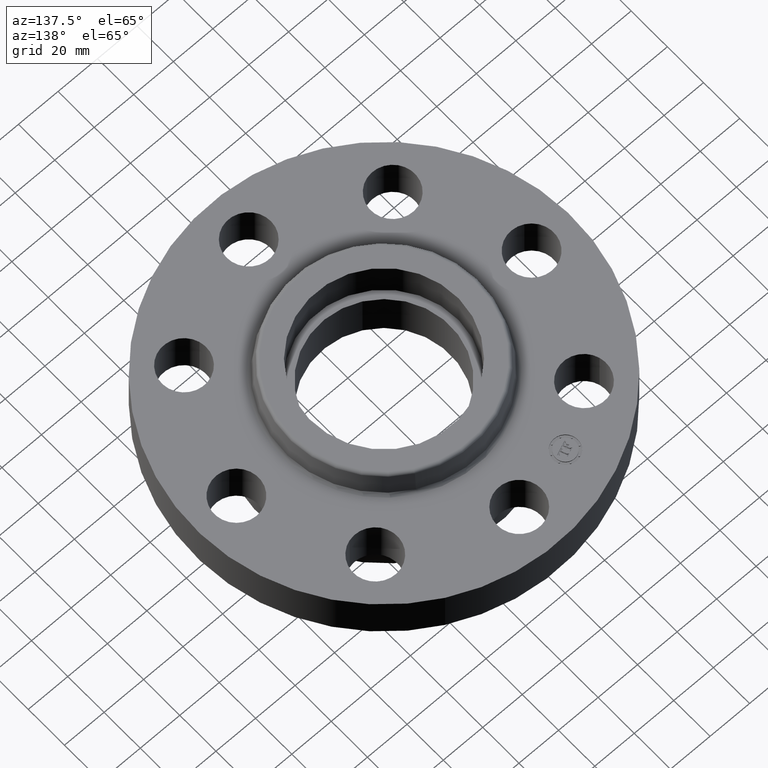
[diagram: clean part render]
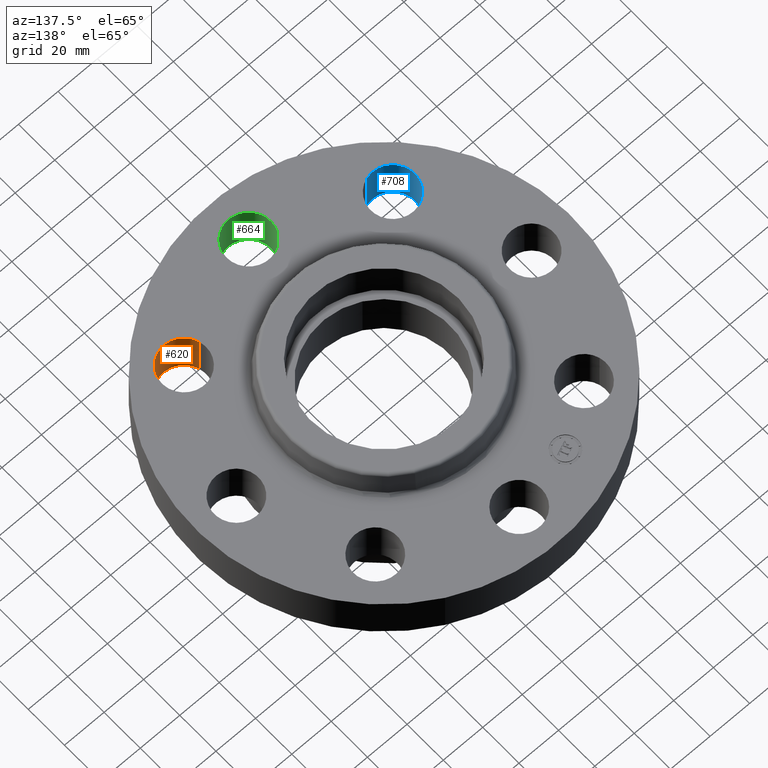
[diagram: same view with three faces highlighted in distinct colors, each labeled with its STEP entity id]
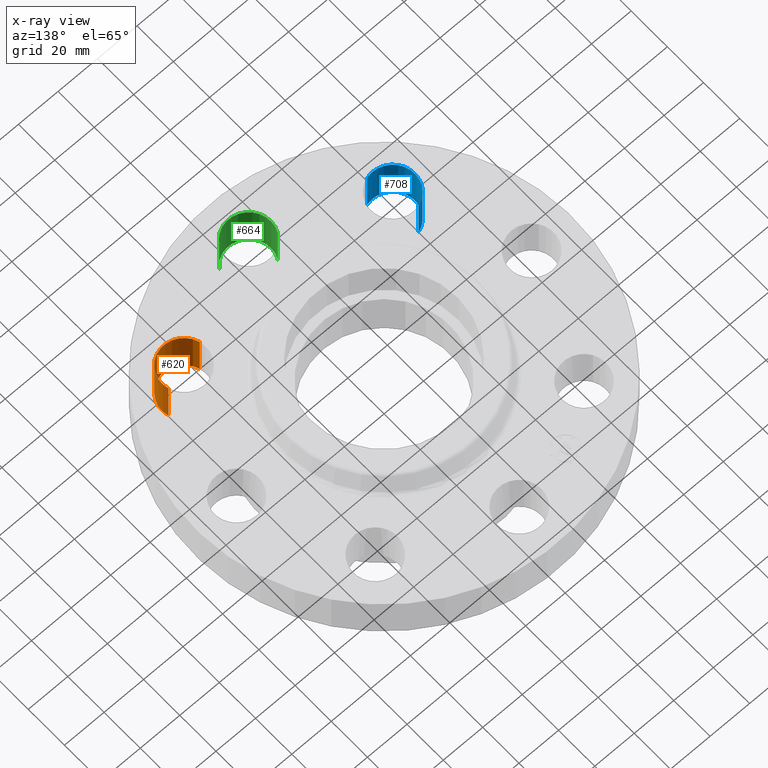
[diagram: x-ray of the same camera — body ghosted, the three highlighted faces saturated]
A machine part, auxiliary view with three faces highlighted in distinct colors.
The next image is the same camera in x-ray (body ghosted, the three faces saturated) — at least one of them is partly hidden behind the body in this view.
Their STEP definitions:

[orange] entity #620 — the highlighted cylindrical surface (edge-blend (fillet) strip) has radius 11.176 mm, axis along (-0, 0, -1).
#500=AXIS2_PLACEMENT_3D('Circle Axis2P3D',#498,#499,$) ;
#593=AXIS2_PLACEMENT_3D('Cylinder Axis2P3D',#590,#591,#592) ;
#611=AXIS2_PLACEMENT_3D('Circle Axis2P3D',#609,#610,$) ;
#495=CARTESIAN_POINT('Vertex',(1.6566920995,-2.2027713304,0.)) ;
#498=CARTESIAN_POINT('Axis2P3D Location',(2.0788939367,-2.0788939367,0.)) ;
#502=CARTESIAN_POINT('Vertex',(2.50109577389,-1.95501654299,0.)) ;
#590=CARTESIAN_POINT('Axis2P3D Location',(2.0788939367,-2.0788939367,0.93606299213)) ;
#595=CARTESIAN_POINT('Line Origine',(2.50109577389,-1.95501654299,0.470000000002)) ;
#599=CARTESIAN_POINT('Vertex',(2.50109577389,-1.95501654299,0.940000000004)) ;
#602=CARTESIAN_POINT('Line Origine',(1.6566920995,-2.2027713304,0.470000000002)) ;
#606=CARTESIAN_POINT('Vertex',(1.6566920995,-2.2027713304,0.940000000004)) ;
#609=CARTESIAN_POINT('Axis2P3D Location',(2.0788939367,-2.0788939367,0.940000000004)) ;
#499=DIRECTION('Axis2P3D Direction',(0.,0.,-0.0393700787402)) ;
#591=DIRECTION('Axis2P3D Direction',(-0.,0.,-0.0393700787402)) ;
#592=DIRECTION('Axis2P3D XDirection',(-0.0377775444876,-0.0110842335096,0.)) ;
#596=DIRECTION('Vector Direction',(0.,0.,-0.0393700787402)) ;
#603=DIRECTION('Vector Direction',(0.,0.,-0.0393700787402)) ;
#610=DIRECTION('Axis2P3D Direction',(-0.,0.,-0.0393700787402)) ;
#597=VECTOR('Line Direction',#596,0.0393700787402) ;
#604=VECTOR('Line Direction',#603,0.0393700787402) ;
#615=ORIENTED_EDGE('',*,*,#601,.F.) ;
#616=ORIENTED_EDGE('',*,*,#504,.T.) ;
#617=ORIENTED_EDGE('',*,*,#608,.T.) ;
#618=ORIENTED_EDGE('',*,*,#613,.F.) ;
#620=ADVANCED_FACE('PartBody',(#619),#594,.F.) ;
#501=CIRCLE('generated circle',#500,0.440000000002) ;
#612=CIRCLE('generated circle',#611,0.440000000002) ;
#594=CYLINDRICAL_SURFACE('generated cylinder',#593,0.440000000002) ;
#504=EDGE_CURVE('',#503,#496,#501,.T.) ;
#601=EDGE_CURVE('',#503,#600,#598,.F.) ;
#608=EDGE_CURVE('',#496,#607,#605,.F.) ;
#613=EDGE_CURVE('',#600,#607,#612,.T.) ;
#614=EDGE_LOOP('',(#615,#616,#617,#618)) ;
#619=FACE_OUTER_BOUND('',#614,.T.) ;
#598=LINE('Line',#595,#597) ;
#605=LINE('Line',#602,#604) ;
#496=VERTEX_POINT('',#495) ;
#503=VERTEX_POINT('',#502) ;
#600=VERTEX_POINT('',#599) ;
#607=VERTEX_POINT('',#606) ;

[blue] entity #708 — the highlighted cylindrical surface (edge-blend (fillet) strip) has radius 11.176 mm, axis along (0, 0, -1).
#462=AXIS2_PLACEMENT_3D('Circle Axis2P3D',#460,#461,$) ;
#681=AXIS2_PLACEMENT_3D('Cylinder Axis2P3D',#678,#679,#680) ;
#699=AXIS2_PLACEMENT_3D('Circle Axis2P3D',#697,#698,$) ;
#457=CARTESIAN_POINT('Vertex',(-2.2027713304,-1.6566920995,0.)) ;
#460=CARTESIAN_POINT('Axis2P3D Location',(-2.0788939367,-2.0788939367,0.)) ;
#464=CARTESIAN_POINT('Vertex',(-1.95501654299,-2.50109577389,0.)) ;
#678=CARTESIAN_POINT('Axis2P3D Location',(-2.0788939367,-2.0788939367,0.93606299213)) ;
#683=CARTESIAN_POINT('Line Origine',(-1.95501654299,-2.50109577389,0.470000000002)) ;
#687=CARTESIAN_POINT('Vertex',(-1.95501654299,-2.50109577389,0.940000000004)) ;
#690=CARTESIAN_POINT('Line Origine',(-2.2027713304,-1.6566920995,0.470000000002)) ;
#694=CARTESIAN_POINT('Vertex',(-2.2027713304,-1.6566920995,0.940000000004)) ;
#697=CARTESIAN_POINT('Axis2P3D Location',(-2.0788939367,-2.0788939367,0.940000000004)) ;
#461=DIRECTION('Axis2P3D Direction',(0.,0.,-0.0393700787402)) ;
#679=DIRECTION('Axis2P3D Direction',(0.,0.,-0.0393700787402)) ;
#680=DIRECTION('Axis2P3D XDirection',(-0.0110842335096,0.0377775444876,0.)) ;
#684=DIRECTION('Vector Direction',(0.,0.,-0.0393700787402)) ;
#691=DIRECTION('Vector Direction',(0.,0.,-0.0393700787402)) ;
#698=DIRECTION('Axis2P3D Direction',(0.,0.,-0.0393700787402)) ;
#685=VECTOR('Line Direction',#684,0.0393700787402) ;
#692=VECTOR('Line Direction',#691,0.0393700787402) ;
#703=ORIENTED_EDGE('',*,*,#689,.F.) ;
#704=ORIENTED_EDGE('',*,*,#466,.T.) ;
#705=ORIENTED_EDGE('',*,*,#696,.T.) ;
#706=ORIENTED_EDGE('',*,*,#701,.F.) ;
#708=ADVANCED_FACE('PartBody',(#707),#682,.F.) ;
#463=CIRCLE('generated circle',#462,0.440000000002) ;
#700=CIRCLE('generated circle',#699,0.440000000002) ;
#682=CYLINDRICAL_SURFACE('generated cylinder',#681,0.440000000002) ;
#466=EDGE_CURVE('',#465,#458,#463,.T.) ;
#689=EDGE_CURVE('',#465,#688,#686,.F.) ;
#696=EDGE_CURVE('',#458,#695,#693,.F.) ;
#701=EDGE_CURVE('',#688,#695,#700,.T.) ;
#702=EDGE_LOOP('',(#703,#704,#705,#706)) ;
#707=FACE_OUTER_BOUND('',#702,.T.) ;
#686=LINE('Line',#683,#685) ;
#693=LINE('Line',#690,#692) ;
#458=VERTEX_POINT('',#457) ;
#465=VERTEX_POINT('',#464) ;
#688=VERTEX_POINT('',#687) ;
#695=VERTEX_POINT('',#694) ;

[green] entity #664 — the highlighted cylindrical surface (edge-blend (fillet) strip) has radius 11.176 mm, axis along (-0, 0, -1).
#481=AXIS2_PLACEMENT_3D('Circle Axis2P3D',#479,#480,$) ;
#637=AXIS2_PLACEMENT_3D('Cylinder Axis2P3D',#634,#635,#636) ;
#655=AXIS2_PLACEMENT_3D('Circle Axis2P3D',#653,#654,$) ;
#476=CARTESIAN_POINT('Vertex',(-0.386136327233,-2.72905276303,0.)) ;
#479=CARTESIAN_POINT('Axis2P3D Location',(-1.39870617276E-016,-2.94000000001,0.)) ;
#483=CARTESIAN_POINT('Vertex',(0.386136327233,-3.150947237,0.)) ;
#634=CARTESIAN_POINT('Axis2P3D Location',(3.60046158951E-016,-2.94000000001,0.93606299213)) ;
#639=CARTESIAN_POINT('Line Origine',(0.386136327233,-3.150947237,0.470000000002)) ;
#643=CARTESIAN_POINT('Vertex',(0.386136327233,-3.150947237,0.940000000004)) ;
#646=CARTESIAN_POINT('Line Origine',(-0.386136327233,-2.72905276303,0.470000000002)) ;
#650=CARTESIAN_POINT('Vertex',(-0.386136327233,-2.72905276303,0.940000000004)) ;
#653=CARTESIAN_POINT('Axis2P3D Location',(3.60046158951E-016,-2.94000000001,0.940000000004)) ;
#480=DIRECTION('Axis2P3D Direction',(0.,0.,-0.0393700787402)) ;
#635=DIRECTION('Axis2P3D Direction',(-0.,0.,-0.0393700787402)) ;
#636=DIRECTION('Axis2P3D XDirection',(-0.0345504945626,0.0188750212049,0.)) ;
#640=DIRECTION('Vector Direction',(0.,0.,-0.0393700787402)) ;
#647=DIRECTION('Vector Direction',(0.,0.,-0.0393700787402)) ;
#654=DIRECTION('Axis2P3D Direction',(-0.,0.,-0.0393700787402)) ;
#641=VECTOR('Line Direction',#640,0.0393700787402) ;
#648=VECTOR('Line Direction',#647,0.0393700787402) ;
#659=ORIENTED_EDGE('',*,*,#645,.F.) ;
#660=ORIENTED_EDGE('',*,*,#485,.T.) ;
#661=ORIENTED_EDGE('',*,*,#652,.T.) ;
#662=ORIENTED_EDGE('',*,*,#657,.F.) ;
#664=ADVANCED_FACE('PartBody',(#663),#638,.F.) ;
#482=CIRCLE('generated circle',#481,0.440000000002) ;
#656=CIRCLE('generated circle',#655,0.440000000002) ;
#638=CYLINDRICAL_SURFACE('generated cylinder',#637,0.440000000002) ;
#485=EDGE_CURVE('',#484,#477,#482,.T.) ;
#645=EDGE_CURVE('',#484,#644,#642,.F.) ;
#652=EDGE_CURVE('',#477,#651,#649,.F.) ;
#657=EDGE_CURVE('',#644,#651,#656,.T.) ;
#658=EDGE_LOOP('',(#659,#660,#661,#662)) ;
#663=FACE_OUTER_BOUND('',#658,.T.) ;
#642=LINE('Line',#639,#641) ;
#649=LINE('Line',#646,#648) ;
#477=VERTEX_POINT('',#476) ;
#484=VERTEX_POINT('',#483) ;
#644=VERTEX_POINT('',#643) ;
#651=VERTEX_POINT('',#650) ;